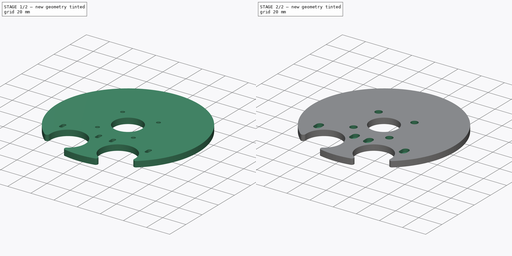
[diagram: build sequence overview — one tinted view per stage of 2, left to right]
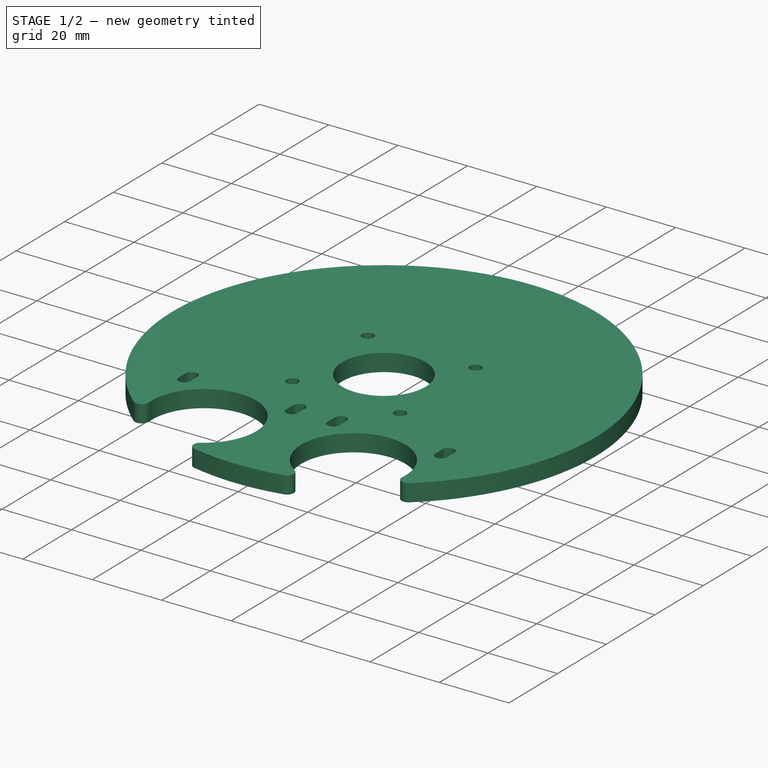
[diagram: stage 1 of 2 — iso view after this stage's code; geometry added in this stage tinted green]
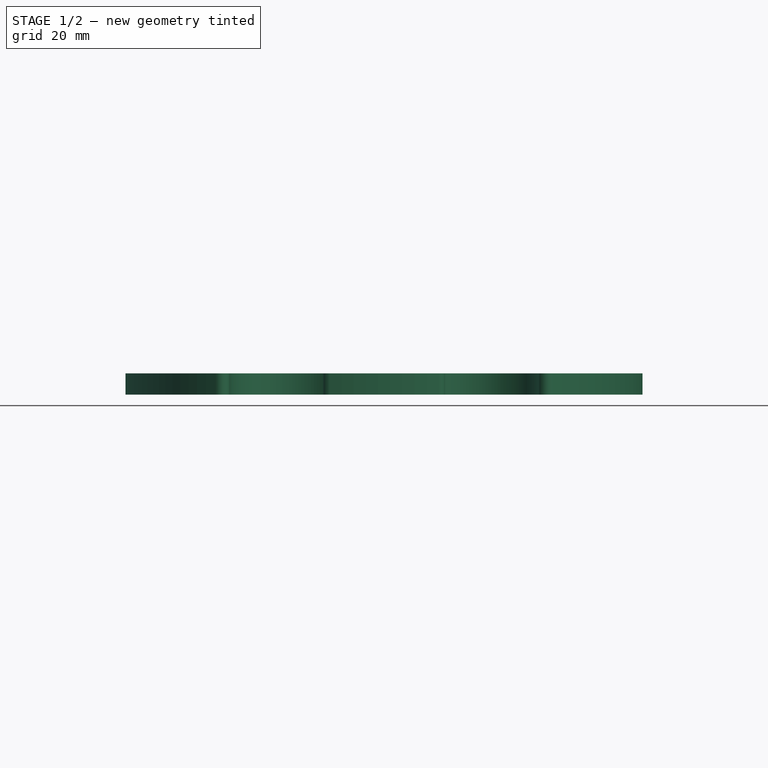
[diagram: stage 1 of 2 — front view after this stage's code; geometry added in this stage tinted green]
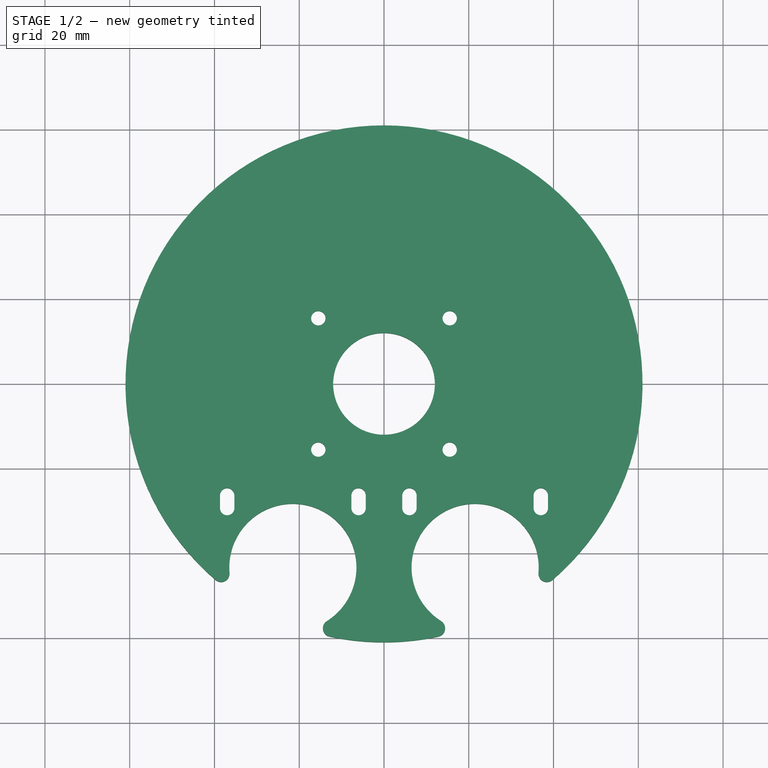
[diagram: stage 1 of 2 — top view after this stage's code; geometry added in this stage tinted green]
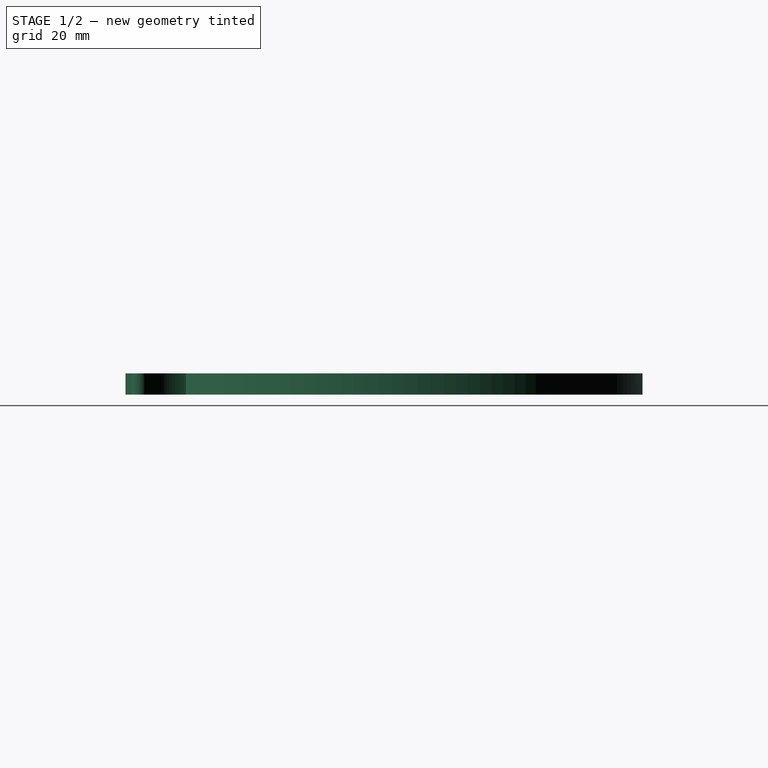
[diagram: stage 1 of 2 — right view after this stage's code; geometry added in this stage tinted green]
FCSTD DOCUMENT  (FreeCAD 0.19R24276 (Git))
Label: Art2BodyACover1
License: All rights reserved
LicenseURL: http://en.wikipedia.org/wiki/All_rights_reserved
objects: PartDesign::Line×8, Sketcher::SketchObject×3, PartDesign::Pocket×2, PartDesign::Pad×1, Spreadsheet::Sheet×1, PartDesign::CoordinateSystem×1, PartDesign::Body×1
note: 19 computed .brp shape members not serialized (recipe doc carries the construction recipe); baked Part::Feature solids carry a one-line shape summary decoded from their .brp

FEATURE [Sketcher::SketchObject] Sketch
  FullyConstrained = true
  MapMode = 5
  Support = -> [XY_Plane]
  sketch-geometry (9):
    g0: ArcOfCircle CenterX=0 CenterY=0 CenterZ=0 NormalX=0 NormalY=0 NormalZ=1 AngleXU=0 Radius=61 StartAngle=4.50017 EndAngle=4.92461
    g1: ArcOfCircle CenterX=21.5 CenterY=-43.3 CenterZ=0 NormalX=0 NormalY=0 NormalZ=1 AngleXU=0 Radius=15 StartAngle=6.19711 EndAngle=10.4326
    g2: ArcOfCircle CenterX=-21.5 CenterY=-43.3 CenterZ=0 NormalX=0 NormalY=0 NormalZ=1 AngleXU=0 Radius=15 StartAngle=5.27536 EndAngle=9.51086
    g3: ArcOfCircle CenterX=0 CenterY=0 CenterZ=0 NormalX=0 NormalY=0 NormalZ=1 AngleXU=0 Radius=61 StartAngle=5.42192 EndAngle=10.286
    g4: Circle CenterX=0 CenterY=0 CenterZ=0 NormalX=0 NormalY=0 NormalZ=1 AngleXU=0 Radius=12
    g5: ArcOfCircle CenterX=38.4371 CenterY=-44.7615 CenterZ=0 NormalX=0 NormalY=0 NormalZ=1 AngleXU=0 Radius=2 StartAngle=3.05552 EndAngle=5.42192
    g6: ArcOfCircle CenterX=12.427 CenterY=-57.6764 CenterZ=0 NormalX=0 NormalY=0 NormalZ=1 AngleXU=0 Radius=2 StartAngle=4.92461 EndAngle=7.29101
    g7: ArcOfCircle CenterX=-12.427 CenterY=-57.6764 CenterZ=0 NormalX=0 NormalY=0 NormalZ=1 AngleXU=0 Radius=2 StartAngle=2.13377 EndAngle=4.50017
    g8: ArcOfCircle CenterX=-38.4371 CenterY=-44.7615 CenterZ=0 NormalX=0 NormalY=0 NormalZ=1 AngleXU=0 Radius=2 StartAngle=4.00286 EndAngle=6.36926
  constraints (23):
    c: Coincident(g0,g-1)
    c: Coincident(g3,g0)
    c: Symmetric(g1,g2,g-2)
    c: Equal(g1,g2)
    c: Equal(g0,g3)
    c: Coincident(g4,g0)
    c: Radius(g4) = 12
    c: Radius(g0) = 61
    c: DistanceY(g2,g0) = 43.3
    c: Radius(g2) = 15
    c: DistanceX(g2,g0) = 21.5
    c: Tangent(g1,g5) = 1.5708
    c: Tangent(g3,g5) = -1.5708
    c: Tangent(g1,g6) = 1.5708
    c: Tangent(g0,g6) = -1.5708
    c: Tangent(g2,g7) = 1.5708
    c: Tangent(g0,g7) = -1.5708
    c: Tangent(g3,g8) = -1.5708
    c: Tangent(g2,g8) = 1.5708
    c: Equal(g8,g7)
    c: Equal(g7,g6)
    c: Equal(g6,g5)
    c: Radius(g5) = 2
FEATURE [PartDesign::Pad] Pad
  Direction = (1,1,1)
  Length = 5
  Length2 = 100
  Profile = -> Sketch
  Refine = true
  Type = 0
FEATURE [Sketcher::SketchObject] Sketch001
  ExternalGeometry = -> [Pad]
  FullyConstrained = true
  MapMode = 5
  Placement = pos=(0,0,5) rot=(0,0,1;0rad)
  Support = -> [Pad]
  expr: Constraints[17] = Spreadsheet.M3BoltBodyRadius
  expr: Constraints[25] = Spreadsheet.M3BoltBodyRadius
  sketch-geometry (24):
    g0: LineSegment StartX=-15.5 StartY=15.5 StartZ=0 EndX=15.5 EndY=15.5 EndZ=0
    g1: LineSegment StartX=15.5 StartY=15.5 StartZ=0 EndX=15.5 EndY=-15.5 EndZ=0
    g2: LineSegment StartX=15.5 StartY=-15.5 StartZ=0 EndX=-15.5 EndY=-15.5 EndZ=0
    g3: LineSegment StartX=-15.5 StartY=-15.5 StartZ=0 EndX=-15.5 EndY=15.5 EndZ=0
    g4: Circle CenterX=15.5 CenterY=15.5 CenterZ=0 NormalX=0 NormalY=0 NormalZ=1 AngleXU=0 Radius=1.7
    g5: Circle CenterX=15.5 CenterY=-15.5 CenterZ=0 NormalX=0 NormalY=0 NormalZ=1 AngleXU=0 Radius=1.7
    g6: Circle CenterX=-15.5 CenterY=-15.5 CenterZ=0 NormalX=0 NormalY=0 NormalZ=1 AngleXU=0 Radius=1.7
    g7: Circle CenterX=-15.5 CenterY=15.5 CenterZ=0 NormalX=0 NormalY=0 NormalZ=1 AngleXU=0 Radius=1.7
    g8: ArcOfCircle CenterX=-37 CenterY=-29.3 CenterZ=0 NormalX=0 NormalY=0 NormalZ=1 AngleXU=0 Radius=1.7 StartAngle=3.14159 EndAngle=6.28319
    g9: ArcOfCircle CenterX=-37 CenterY=-26.3 CenterZ=0 NormalX=0 NormalY=0 NormalZ=1 AngleXU=0 Radius=1.7 StartAngle=6e-16 EndAngle=3.14159
    g10: LineSegment StartX=-35.3 StartY=-29.3 StartZ=0 EndX=-35.3 EndY=-26.3 EndZ=0
    g11: LineSegment StartX=-38.7 StartY=-29.3 StartZ=0 EndX=-38.7 EndY=-26.3 EndZ=0
    g12: ArcOfCircle CenterX=-6 CenterY=-29.3 CenterZ=0 NormalX=0 NormalY=0 NormalZ=1 AngleXU=0 Radius=1.7 StartAngle=3.14159 EndAngle=6.28319
    g13: ArcOfCircle CenterX=-6 CenterY=-26.3 CenterZ=0 NormalX=0 NormalY=0 NormalZ=1 AngleXU=0 Radius=1.7 StartAngle=1e-16 EndAngle=3.14159
    g14: LineSegment StartX=-4.3 StartY=-29.3 StartZ=0 EndX=-4.3 EndY=-26.3 EndZ=0
    g15: LineSegment StartX=-7.7 StartY=-29.3 StartZ=0 EndX=-7.7 EndY=-26.3 EndZ=0
    g16: ArcOfCircle CenterX=6 CenterY=-26.3 CenterZ=0 NormalX=0 NormalY=0 NormalZ=1 AngleXU=0 Radius=1.7 StartAngle=1e-15 EndAngle=3.14159
    g17: ArcOfCircle CenterX=6 CenterY=-29.3 CenterZ=0 NormalX=0 NormalY=0 NormalZ=1 AngleXU=0 Radius=1.7 StartAngle=3.14159 EndAngle=6.28319
    g18: LineSegment StartX=4.3 StartY=-26.3 StartZ=0 EndX=4.3 EndY=-29.3 EndZ=0
    g19: LineSegment StartX=7.7 StartY=-26.3 StartZ=0 EndX=7.7 EndY=-29.3 EndZ=0
    g20: ArcOfCircle CenterX=37 CenterY=-26.3 CenterZ=0 NormalX=0 NormalY=0 NormalZ=1 AngleXU=0 Radius=1.7 StartAngle=6e-16 EndAngle=3.14159
    g21: ArcOfCircle CenterX=37 CenterY=-29.3 CenterZ=0 NormalX=0 NormalY=0 NormalZ=1 AngleXU=0 Radius=1.7 StartAngle=3.14159 EndAngle=6.28319
    g22: LineSegment StartX=35.3 StartY=-26.3 StartZ=0 EndX=35.3 EndY=-29.3 EndZ=0
    g23: LineSegment StartX=38.7 StartY=-26.3 StartZ=0 EndX=38.7 EndY=-29.3 EndZ=0
  constraints (56):
    c: Coincident(g0,g1)
    c: Coincident(g1,g2)
    c: Coincident(g2,g3)
    c: Coincident(g3,g0)
    c: Horizontal(g0)
    c: Vertical(g1)
    c: Equal(g2,g1)
    c: Symmetric(g1,g2,g-2)
    c: Symmetric(g2,g0,g-1)
    c: DistanceX(g0,g0) = 31
    c: Coincident(g4,g0)
    c: Coincident(g5,g1)
    c: Coincident(g6,g2)
    c: Coincident(g7,g0)
    c: Equal(g7,g4)
    c: Equal(g4,g5)
    c: Equal(g5,g6)
    c: Radius(g6) = 1.7
    c: Tangent(g8,g11) = 1.5708
    c: Tangent(g8,g10) = -1.5708
    c: Tangent(g10,g9) = -1.5708
    c: Tangent(g11,g9) = 1.5708
    c: Vertical(g10)
    c: Equal(g8,g9)
    c: DistanceY(g8,g9) = 3
    c: Radius(g8) = 1.7
    c: DistanceX(g8,g-3) = 15.5
    c: DistanceY(g-3,g8) = 14
    c: Tangent(g12,g15) = 1.5708
    c: Tangent(g12,g14) = -1.5708
    c: Tangent(g14,g13) = -1.5708
    c: Tangent(g15,g13) = 1.5708
    c: Vertical(g14)
    c: Equal(g12,g13)
    c: DistanceY(g12,g13) = 3
    c: Equal(g8,g12) = 1.7
    c: DistanceX(g-3,g12) = 15.5
    c: DistanceY(g-3,g12) = 14
    c: Tangent(g16,g19) = 1.5708
    c: Tangent(g16,g18) = -1.5708
    c: Tangent(g18,g17) = -1.5708
    c: Tangent(g19,g17) = 1.5708
    c: Vertical(g18)
    c: Equal(g16,g17)
    c: Tangent(g20,g23) = 1.5708
    c: Tangent(g20,g22) = -1.5708
    c: Tangent(g22,g21) = -1.5708
    c: Tangent(g23,g21) = 1.5708
    c: Vertical(g22)
    c: Equal(g20,g21)
    c: Symmetric(g21,g8,g-2)
    c: Symmetric(g17,g12,g-2)
    c: Equal(g18,g22)
    c: Equal(g22,g14)
    c: Equal(g12,g17)
    c: Equal(g17,g21)
FEATURE [Spreadsheet::Sheet] Spreadsheet
  cells = A2=M3BoltBodyRadius; B2(M3BoltBodyRadius)=1.7; A3=M3BoltHeadRadius; B3(M3BoltHeadRadius)=2.95; A4=M3NutCircumradius; B4(M3NutCircumradius)=3.35; A5=M3NutThickness; B5(M3NutThickness)=3; A6=Bearing655ZZBodyRadius; B6(Bearing655ZZBodyRadius)=8.199999999999999
FEATURE [PartDesign::Pocket] Pocket
  BaseFeature = -> Pad
  Length = 5
  Length2 = 100
  Profile = -> Sketch001
  Refine = true
  Type = 1
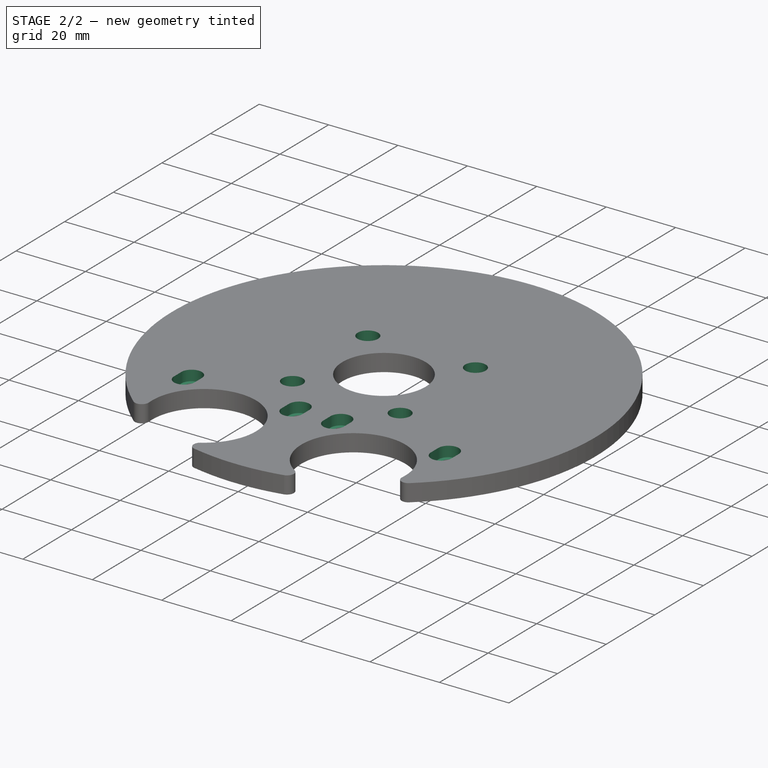
[diagram: stage 2 of 2 — iso view after this stage's code; geometry added in this stage tinted green]
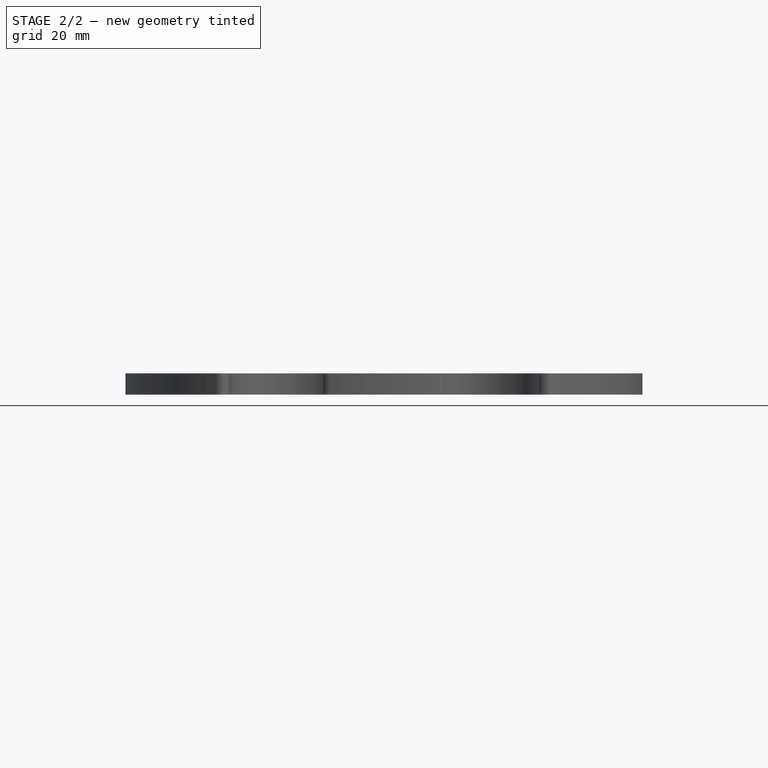
[diagram: stage 2 of 2 — front view after this stage's code; geometry added in this stage tinted green]
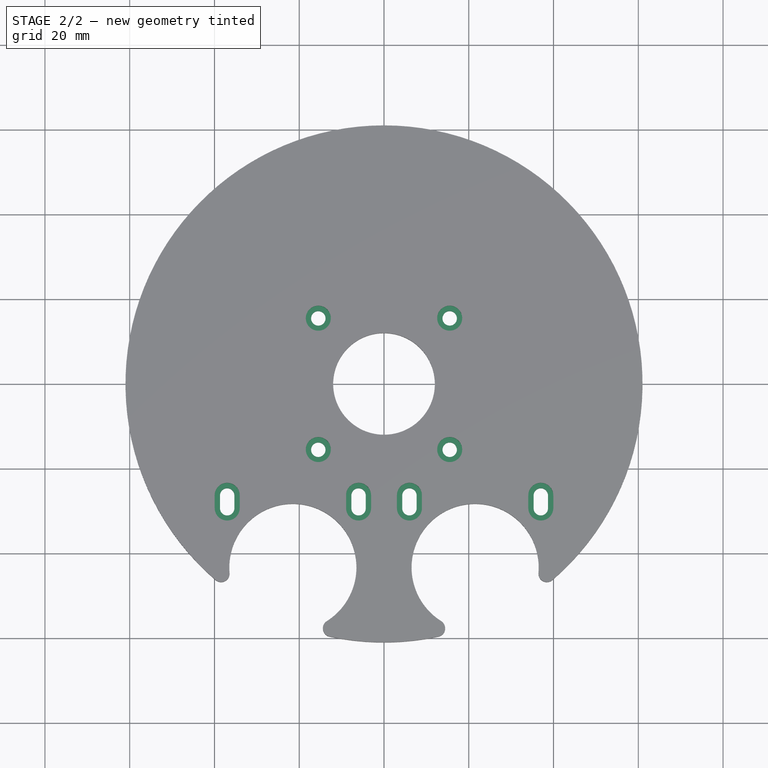
[diagram: stage 2 of 2 — top view after this stage's code; geometry added in this stage tinted green]
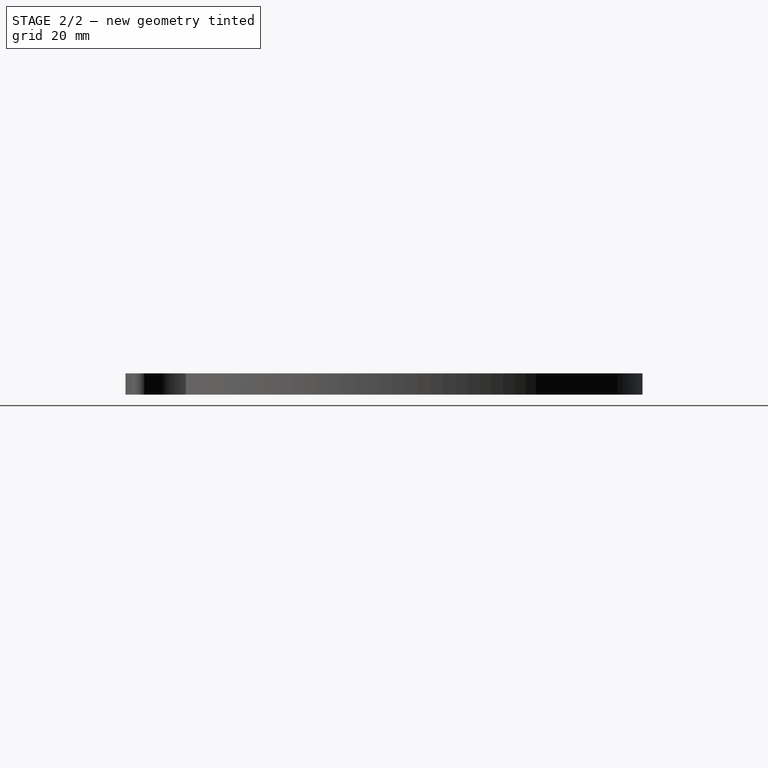
[diagram: stage 2 of 2 — right view after this stage's code; geometry added in this stage tinted green]
FEATURE [Sketcher::SketchObject] Sketch002
  ExternalGeometry = -> [Pocket]
  FullyConstrained = true
  MapMode = 5
  Placement = pos=(0,0,5) rot=(0,0,1;0rad)
  Support = -> [Pocket]
  expr: Constraints[7] = Spreadsheet.M3BoltHeadRadius
  sketch-geometry (20):
    g0: Circle CenterX=15.5 CenterY=15.5 CenterZ=0 NormalX=0 NormalY=0 NormalZ=1 AngleXU=0 Radius=2.95
    g1: Circle CenterX=-15.5 CenterY=15.5 CenterZ=0 NormalX=0 NormalY=0 NormalZ=1 AngleXU=0 Radius=2.95
    g2: Circle CenterX=-15.5 CenterY=-15.5 CenterZ=0 NormalX=0 NormalY=0 NormalZ=1 AngleXU=0 Radius=2.95
    g3: Circle CenterX=15.5 CenterY=-15.5 CenterZ=0 NormalX=0 NormalY=0 NormalZ=1 AngleXU=0 Radius=2.95
    g4: ArcOfCircle CenterX=37 CenterY=-26.3 CenterZ=0 NormalX=0 NormalY=0 NormalZ=1 AngleXU=0 Radius=2.95 StartAngle=3.59e-14 EndAngle=3.14159
    g5: ArcOfCircle CenterX=37 CenterY=-29.3 CenterZ=0 NormalX=0 NormalY=0 NormalZ=1 AngleXU=0 Radius=2.95 StartAngle=3.14159 EndAngle=6.28319
    g6: LineSegment StartX=34.05 StartY=-26.3 StartZ=0 EndX=34.05 EndY=-29.3 EndZ=0
    g7: LineSegment StartX=39.95 StartY=-26.3 StartZ=0 EndX=39.95 EndY=-29.3 EndZ=0
    g8: ArcOfCircle CenterX=6 CenterY=-26.3 CenterZ=0 NormalX=0 NormalY=0 NormalZ=1 AngleXU=0 Radius=2.95 StartAngle=3.87e-14 EndAngle=3.14159
    g9: ArcOfCircle CenterX=6 CenterY=-29.3 CenterZ=0 NormalX=0 NormalY=0 NormalZ=1 AngleXU=0 Radius=2.95 StartAngle=3.14159 EndAngle=6.28319
    g10: LineSegment StartX=3.05 StartY=-26.3 StartZ=0 EndX=3.05 EndY=-29.3 EndZ=0
    g11: LineSegment StartX=8.95 StartY=-26.3 StartZ=0 EndX=8.95 EndY=-29.3 EndZ=0
    g12: ArcOfCircle CenterX=-6 CenterY=-26.3 CenterZ=0 NormalX=0 NormalY=0 NormalZ=1 AngleXU=0 Radius=2.95 StartAngle=3.86e-14 EndAngle=3.14159
    g13: ArcOfCircle CenterX=-6 CenterY=-29.3 CenterZ=0 NormalX=0 NormalY=0 NormalZ=1 AngleXU=0 Radius=2.95 StartAngle=3.14159 EndAngle=6.28319
    g14: LineSegment StartX=-8.95 StartY=-26.3 StartZ=0 EndX=-8.95 EndY=-29.3 EndZ=0
    g15: LineSegment StartX=-3.05 StartY=-26.3 StartZ=0 EndX=-3.05 EndY=-29.3 EndZ=0
    g16: ArcOfCircle CenterX=-37 CenterY=-26.3 CenterZ=0 NormalX=0 NormalY=0 NormalZ=1 AngleXU=0 Radius=2.95 StartAngle=-2.993e-13 EndAngle=3.14159
    g17: ArcOfCircle CenterX=-37 CenterY=-29.3 CenterZ=0 NormalX=0 NormalY=0 NormalZ=1 AngleXU=0 Radius=2.95 StartAngle=3.14159 EndAngle=6.28319
    g18: LineSegment StartX=-39.95 StartY=-26.3 StartZ=0 EndX=-39.95 EndY=-29.3 EndZ=0
    g19: LineSegment StartX=-34.05 StartY=-26.3 StartZ=0 EndX=-34.05 EndY=-29.3 EndZ=0
  constraints (40):
    c: Coincident(g0,g-3)
    c: Coincident(g1,g-5)
    c: Coincident(g2,g-6)
    c: Coincident(g3,g-4)
    c: Equal(g3,g0)
    c: Equal(g0,g1)
    c: Equal(g1,g2)
    c: Radius(g2) = 2.95
    c: Tangent(g4,g7) = 1.5708
    c: Tangent(g4,g6) = -1.5708
    c: Tangent(g6,g5) = -1.5708
    c: Tangent(g7,g5) = 1.5708
    c: Vertical(g6)
    c: Coincident(g4,g-10)
    c: Tangent(g8,g11) = 1.5708
    c: Tangent(g8,g10) = -1.5708
    c: Tangent(g10,g9) = -1.5708
    c: Tangent(g11,g9) = 1.5708
    c: Vertical(g10)
    c: Coincident(g8,g-9)
    c: Tangent(g12,g15) = 1.5708
    c: Tangent(g12,g14) = -1.5708
    c: Tangent(g14,g13) = -1.5708
    c: Tangent(g15,g13) = 1.5708
    c: Vertical(g14)
    c: Coincident(g12,g-7)
    c: Tangent(g16,g19) = 1.5708
    c: Tangent(g16,g18) = -1.5708
    c: Tangent(g18,g17) = -1.5708
    c: Tangent(g19,g17) = 1.5708
    c: Vertical(g18)
    c: Coincident(g16,g-8)
    c: Coincident(g5,g-11)
    c: Coincident(g-12,g9)
    c: Coincident(g-14,g17)
    c: Coincident(g-13,g13)
    c: Equal(g17,g13)
    c: Equal(g13,g9)
    c: Equal(g9,g5)
    c: Equal(g5,g2)
FEATURE [PartDesign::Pocket] Pocket001
  BaseFeature = -> Pocket
  Length = 3
  Length2 = 100
  Profile = -> Sketch002
  Refine = true
  Type = 0
FEATURE [PartDesign::CoordinateSystem] LCS_Art2BodyACover1
  AttacherType = Attacher::AttachEngine3D
  MapMode = 45
  Placement = pos=(6.7e-15,-7.3e-15,0) rot=(0,0,1;0rad)
  Support = -> [Pocket001]
FEATURE [PartDesign::Line] HoleAxis_1
  AttacherType = Attacher::AttachEngineLine
  Length = 4.79083
  MapMode = 19
  Placement = pos=(-15.5,15.5,2) rot=(0,0,1;0rad)
  ResizeMode = 1
  Support = -> [Pocket001]
FEATURE [PartDesign::Line] HoleAxis_2
  AttacherType = Attacher::AttachEngineLine
  Length = 4.79083
  MapMode = 19
  Placement = pos=(-15.5,-15.5,2) rot=(0,0,1;0rad)
  ResizeMode = 1
  Support = -> [Pocket001]
FEATURE [PartDesign::Line] HoleAxis_3
  AttacherType = Attacher::AttachEngineLine
  AttachmentOffset = pos=(0,-1.5,0) rot=(0,0,1;0rad)
  Length = 3.79579
  MapMode = 19
  Placement = pos=(-37,-27.8,2) rot=(0,0,1;0rad)
  ResizeMode = 1
  Support = -> [Pocket001]
FEATURE [PartDesign::Line] HoleAxis_4
  AttacherType = Attacher::AttachEngineLine
  AttachmentOffset = pos=(0,-1.5,0) rot=(0,0,1;0rad)
  Length = 3.79579
  MapMode = 19
  Placement = pos=(-6,-27.8,2) rot=(0,0,1;0rad)
  ResizeMode = 1
  Support = -> [Pocket001]
FEATURE [PartDesign::Line] HoleAxis_5
  AttacherType = Attacher::AttachEngineLine
  AttachmentOffset = pos=(0,-1.5,0) rot=(0,0,1;0rad)
  Length = 3.79579
  MapMode = 19
  Placement = pos=(6,-27.8,2) rot=(0,0,1;0rad)
  ResizeMode = 1
  Support = -> [Pocket001]
FEATURE [PartDesign::Line] HoleAxis_6
  AttacherType = Attacher::AttachEngineLine
  Length = 4.79083
  MapMode = 19
  Placement = pos=(15.5,-15.5,2) rot=(0,0,1;0rad)
  ResizeMode = 1
  Support = -> [Pocket001]
FEATURE [PartDesign::Line] HoleAxis_7
  AttacherType = Attacher::AttachEngineLine
  Length = 4.79083
  MapMode = 19
  Placement = pos=(15.5,15.5,2) rot=(0,0,1;0rad)
  ResizeMode = 1
  Support = -> [Pocket001]
FEATURE [PartDesign::Line] HoleAxis_8
  AttacherType = Attacher::AttachEngineLine
  AttachmentOffset = pos=(0,-1.5,0) rot=(0,0,1;0rad)
  Length = 3.79579
  MapMode = 19
  Placement = pos=(37,-27.8,2) rot=(0,0,1;0rad)
  ResizeMode = 1
  Support = -> [Pocket001]
FEATURE [PartDesign::Body] Body  label="Art2BodyACover1"
  Group = -> [Sketch,Pad,Sketch001,Pocket,Sketch002,Pocket001,LCS_Art2BodyACover1,HoleAxis_1,HoleAxis_2,HoleAxis_3,HoleAxis_4,HoleAxis_5,HoleAxis_6,HoleAxis_7,HoleAxis_8]
  Origin = -> Origin
  Tip = -> Pocket001
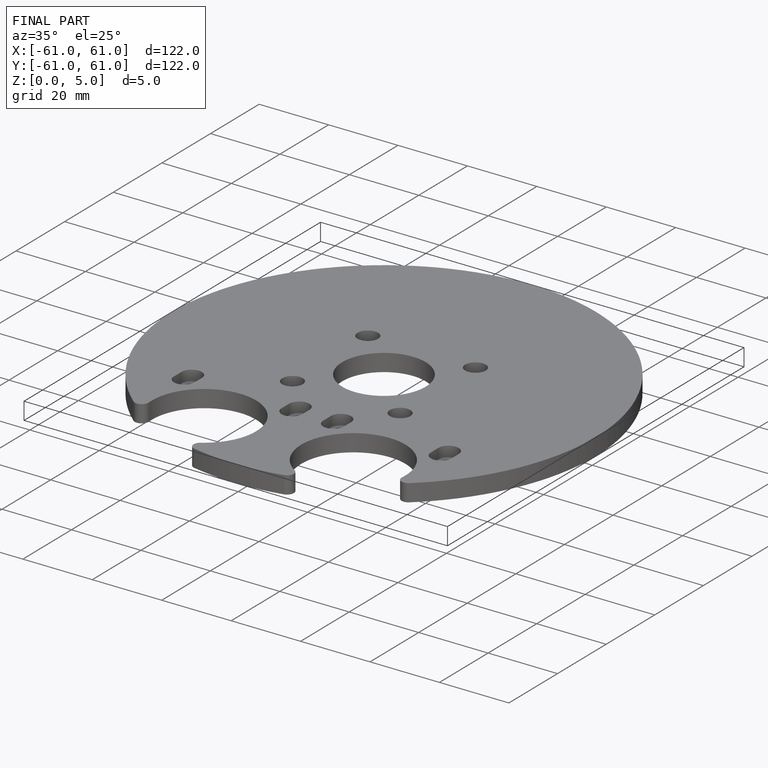
[diagram: finished part — iso view with bounding-box wireframe]
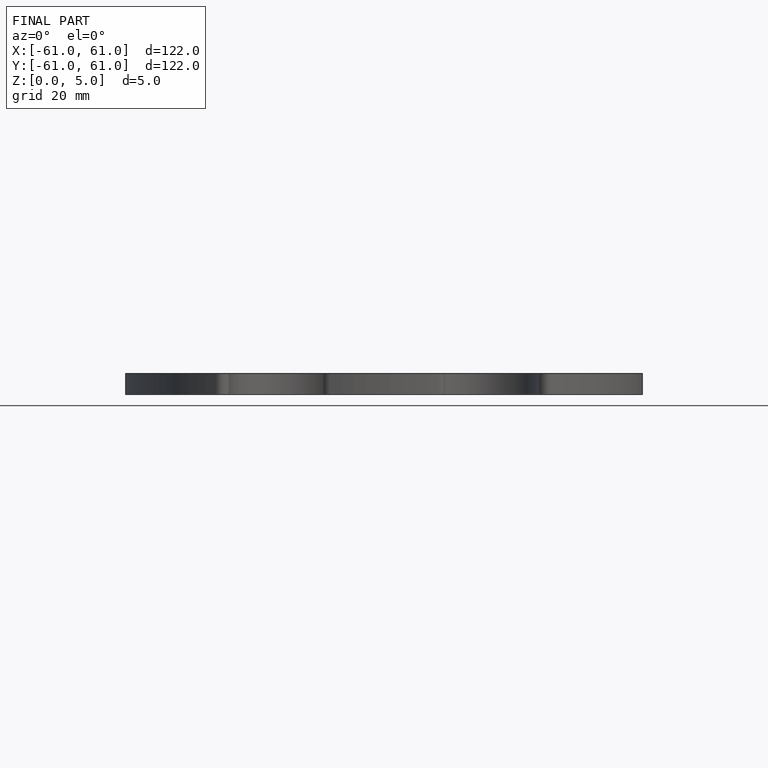
[diagram: finished part — front view with bounding-box wireframe]
